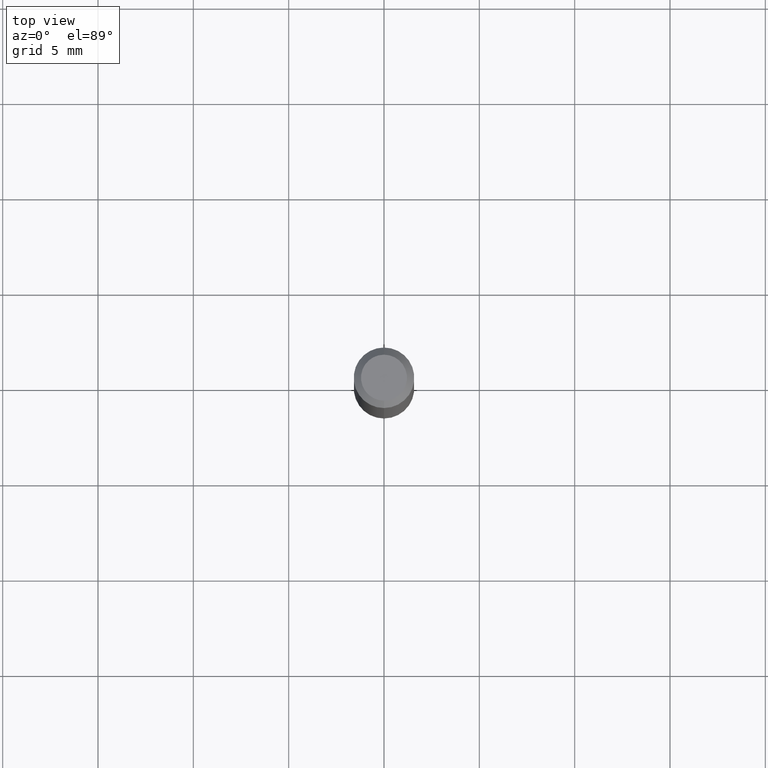
[diagram: clean part render]
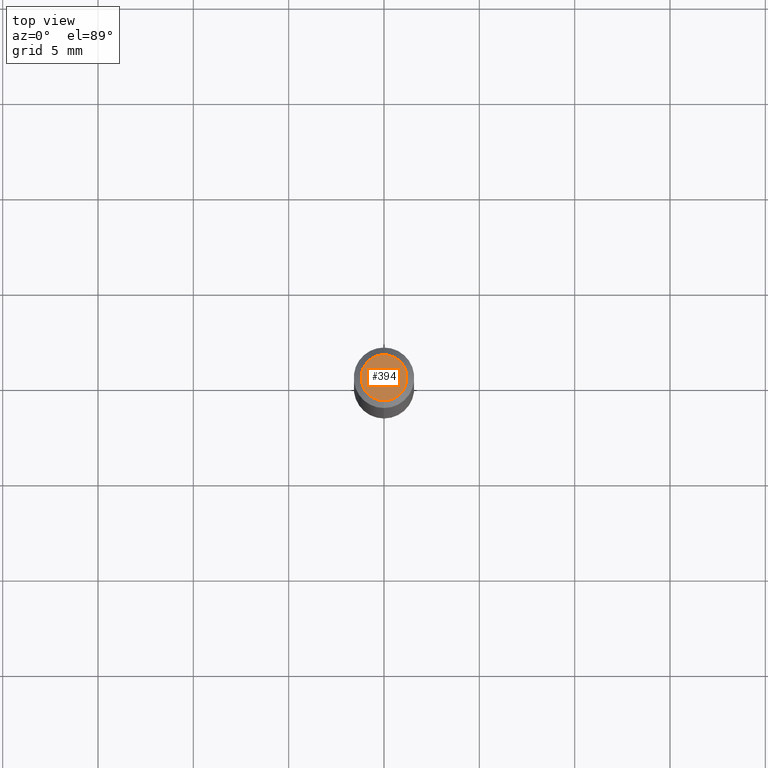
[diagram: same view with one face highlighted and labeled with its STEP entity id]
A machine part, top view. The second image highlights one B-rep face of the part: STEP entity #394.
In plain terms, the highlighted planar face has unit normal (0, -0, -1).
Its self-contained STEP definition (entity closure, byte-faithful):
#4 = EDGE_LOOP ( 'NONE', ( #382, #242 ) ) ;
#14 = DIRECTION ( 'NONE',  ( -6.982962677686266711E-15, -1.000000000000000000, 3.492036710041802963E-15 ) ) ;
#114 = VERTEX_POINT ( 'NONE', #238 ) ;
#149 = EDGE_CURVE ( 'NONE', #152, #114, #230, .T. ) ;
#152 = VERTEX_POINT ( 'NONE', #184 ) ;
#154 = CIRCLE ( 'NONE', #231, 0.04749999999999999362 ) ;
#183 = PLANE ( 'NONE',  #349 ) ;
#184 = CARTESIAN_POINT ( 'NONE',  ( 3.840629472727447874E-16, 0.04749999999999999362, 7.364327909283748346E-17 ) ) ;
#187 = CARTESIAN_POINT ( 'NONE',  ( 3.316907271900976096E-16, 0.04749999999999999362, -4.611423231707403477E-17 ) ) ;
#230 = CIRCLE ( 'NONE', #248, 0.04749999999999999362 ) ;
#231 = AXIS2_PLACEMENT_3D ( 'NONE', #459, #234, #350 ) ;
#233 = CARTESIAN_POINT ( 'NONE',  ( -5.856336297269022681E-45, 8.363952522933223333E-31, 2.395150228198230981E-16 ) ) ;
#234 = DIRECTION ( 'NONE',  ( -2.445080992549888330E-29, 3.492036710041802569E-15, 1.000000000000000000 ) ) ;
#238 = CARTESIAN_POINT ( 'NONE',  ( -3.773273898774340269E-16, -0.04749999999999999362, 4.053867665468087251E-16 ) ) ;
#242 = ORIENTED_EDGE ( 'NONE', *, *, #502, .T. ) ;
#248 = AXIS2_PLACEMENT_3D ( 'NONE', #233, #343, #14 ) ;
#343 = DIRECTION ( 'NONE',  ( -2.445080992549888330E-29, 3.492036710041802569E-15, 1.000000000000000000 ) ) ;
#349 = AXIS2_PLACEMENT_3D ( 'NONE', #187, #374, #488 ) ;
#350 = DIRECTION ( 'NONE',  ( -6.982962677686266711E-15, -1.000000000000000000, 3.492036710041802963E-15 ) ) ;
#374 = DIRECTION ( 'NONE',  ( 2.445080992549888049E-29, -3.492036710041802569E-15, -1.000000000000000000 ) ) ;
#382 = ORIENTED_EDGE ( 'NONE', *, *, #149, .T. ) ;
#394 = ADVANCED_FACE ( 'NONE', ( #410 ), #183, .F. ) ;
#410 = FACE_OUTER_BOUND ( 'NONE', #4, .T. ) ;
#459 = CARTESIAN_POINT ( 'NONE',  ( -5.856336297269022681E-45, 8.363952522933223333E-31, 2.395150228198230981E-16 ) ) ;
#488 = DIRECTION ( 'NONE',  ( 6.982962677686265922E-15, 1.000000000000000000, -3.492036710041802569E-15 ) ) ;
#502 = EDGE_CURVE ( 'NONE', #114, #152, #154, .T. ) ;